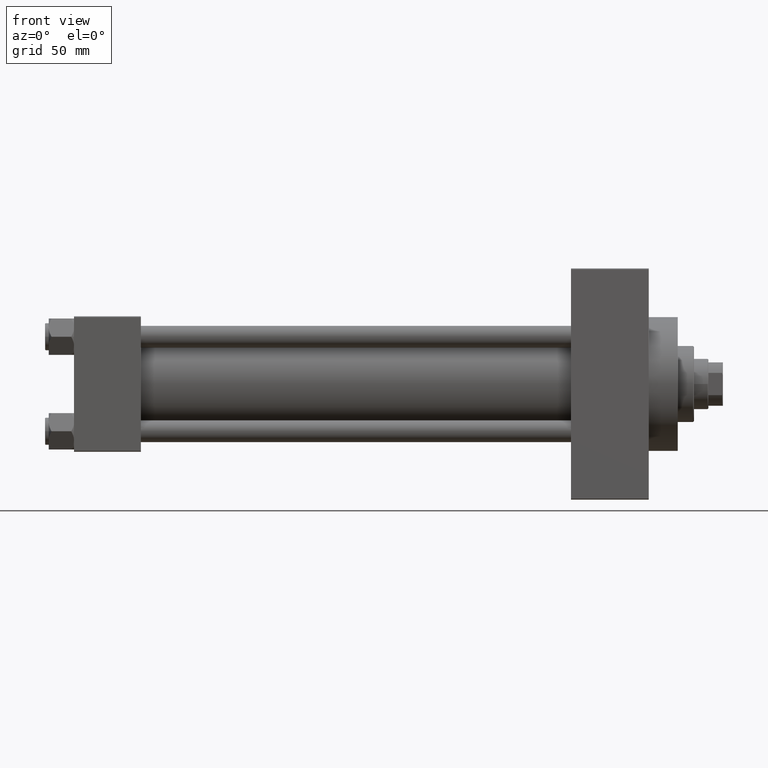
[diagram: clean part render]
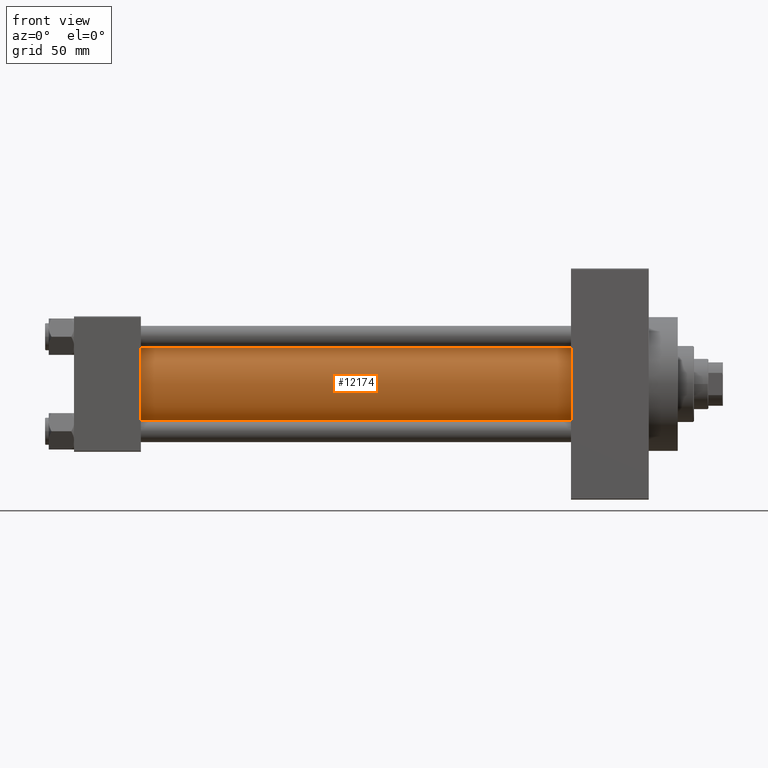
[diagram: same view with one face highlighted and labeled with its STEP entity id]
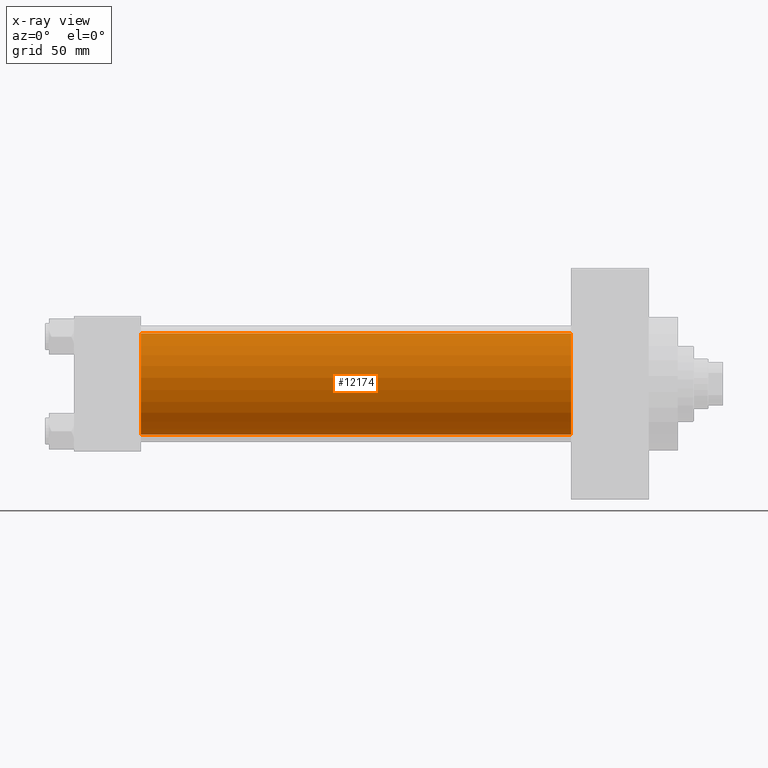
[diagram: x-ray of the same camera — body ghosted, the highlighted face saturated]
A machine part, front view. The second image highlights one B-rep face of the part: STEP entity #12174.
The next image is the same camera in x-ray: the body ghosted, the highlighted face saturated — about 0% of this face is hidden behind the body in this view.
In plain terms, the highlighted cylindrical surface (partial cylindrical patch) has radius 28 mm, axis along (-1, -0, -0).
Its self-contained STEP definition (entity closure, byte-faithful):
#102 = CARTESIAN_POINT ( 'NONE',  ( 274.9999999999999432, 8.269258236473784371E-16, -28.00000000000000000 ) ) ;
#1138 = DIRECTION ( 'NONE',  ( -1.000000000000000000, -0.000000000000000000, -0.000000000000000000 ) ) ;
#2576 = CARTESIAN_POINT ( 'NONE',  ( 37.00000000000000711, -2.602085213965210642E-15, 28.00000000000000000 ) ) ;
#7914 = DIRECTION ( 'NONE',  ( 0.000000000000000000, 0.000000000000000000, 1.000000000000000000 ) ) ;
#9086 = EDGE_LOOP ( 'NONE', ( #12108, #16291, #20666, #21291 ) ) ;
#9785 = CYLINDRICAL_SURFACE ( 'NONE', #33005, 28.00000000000000000 ) ;
#12108 = ORIENTED_EDGE ( 'NONE', *, *, #22703, .F. ) ;
#12174 = ADVANCED_FACE ( 'NONE', ( #24981 ), #9785, .T. ) ;
#13024 = CARTESIAN_POINT ( 'NONE',  ( 274.9999999999999432, -2.602085213965210642E-15, 0.000000000000000000 ) ) ;
#13246 = CARTESIAN_POINT ( 'NONE',  ( 274.9999999999999432, 8.269258236473784371E-16, -28.00000000000000000 ) ) ;
#14729 = CARTESIAN_POINT ( 'NONE',  ( 274.9999999999999432, -2.602085213965210642E-15, 28.00000000000000000 ) ) ;
#15297 = DIRECTION ( 'NONE',  ( -1.000000000000000000, -0.000000000000000000, -0.000000000000000000 ) ) ;
#15366 = DIRECTION ( 'NONE',  ( 1.000000000000000000, -0.000000000000000000, 0.000000000000000000 ) ) ;
#15454 = EDGE_CURVE ( 'NONE', #22133, #41370, #31069, .T. ) ;
#16291 = ORIENTED_EDGE ( 'NONE', *, *, #43841, .F. ) ;
#17654 = CARTESIAN_POINT ( 'NONE',  ( 37.00000000000000711, 8.269258236473784371E-16, -28.00000000000000000 ) ) ;
#19596 = CARTESIAN_POINT ( 'NONE',  ( 37.00000000000000711, -2.602085213965210642E-15, 0.000000000000000000 ) ) ;
#19807 = DIRECTION ( 'NONE',  ( 0.000000000000000000, 0.000000000000000000, -1.000000000000000000 ) ) ;
#20666 = ORIENTED_EDGE ( 'NONE', *, *, #15454, .T. ) ;
#21291 = ORIENTED_EDGE ( 'NONE', *, *, #35908, .T. ) ;
#22133 = VERTEX_POINT ( 'NONE', #14729 ) ;
#22703 = EDGE_CURVE ( 'NONE', #41576, #47523, #34261, .T. ) ;
#24740 = DIRECTION ( 'NONE',  ( 0.000000000000000000, 0.000000000000000000, 1.000000000000000000 ) ) ;
#24981 = FACE_OUTER_BOUND ( 'NONE', #9086, .T. ) ;
#27783 = DIRECTION ( 'NONE',  ( 1.000000000000000000, 0.000000000000000000, 0.000000000000000000 ) ) ;
#30691 = CIRCLE ( 'NONE', #32289, 28.00000000000000000 ) ;
#31069 = LINE ( 'NONE', #35308, #48798 ) ;
#32289 = AXIS2_PLACEMENT_3D ( 'NONE', #42973, #27783, #19807 ) ;
#33005 = AXIS2_PLACEMENT_3D ( 'NONE', #13024, #47186, #24740 ) ;
#33124 = VECTOR ( 'NONE', #15297, 1000.000000000000000 ) ;
#34261 = LINE ( 'NONE', #102, #33124 ) ;
#35308 = CARTESIAN_POINT ( 'NONE',  ( 274.9999999999999432, -2.602085213965210642E-15, 28.00000000000000000 ) ) ;
#35830 = CIRCLE ( 'NONE', #39046, 28.00000000000000000 ) ;
#35908 = EDGE_CURVE ( 'NONE', #41370, #47523, #35830, .T. ) ;
#39046 = AXIS2_PLACEMENT_3D ( 'NONE', #19596, #15366, #7914 ) ;
#41370 = VERTEX_POINT ( 'NONE', #2576 ) ;
#41576 = VERTEX_POINT ( 'NONE', #13246 ) ;
#42973 = CARTESIAN_POINT ( 'NONE',  ( 274.9999999999999432, -2.602085213965210642E-15, 0.000000000000000000 ) ) ;
#43841 = EDGE_CURVE ( 'NONE', #22133, #41576, #30691, .T. ) ;
#47186 = DIRECTION ( 'NONE',  ( -1.000000000000000000, -0.000000000000000000, -0.000000000000000000 ) ) ;
#47523 = VERTEX_POINT ( 'NONE', #17654 ) ;
#48798 = VECTOR ( 'NONE', #1138, 1000.000000000000000 ) ;